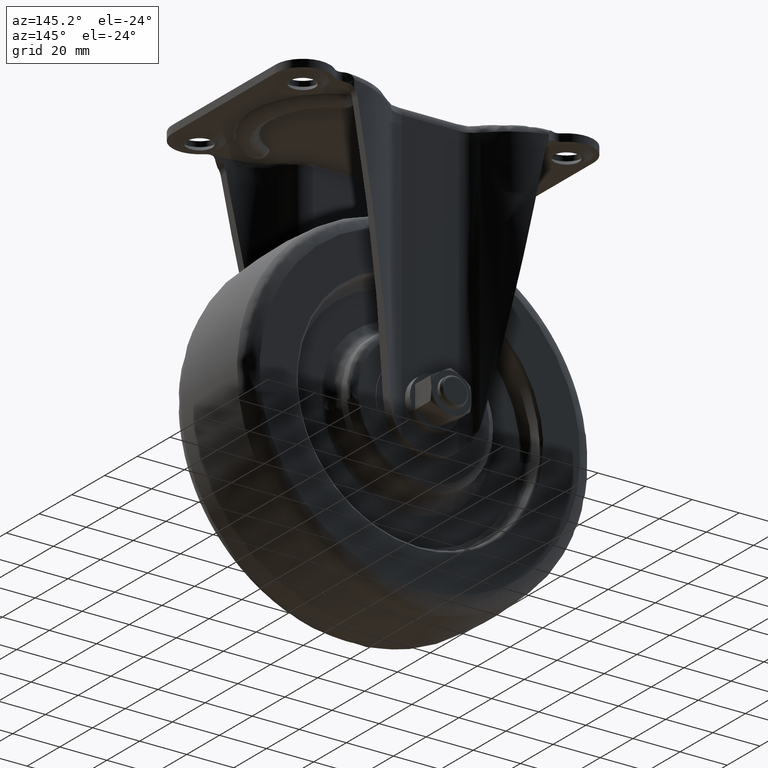
[diagram: clean part render]
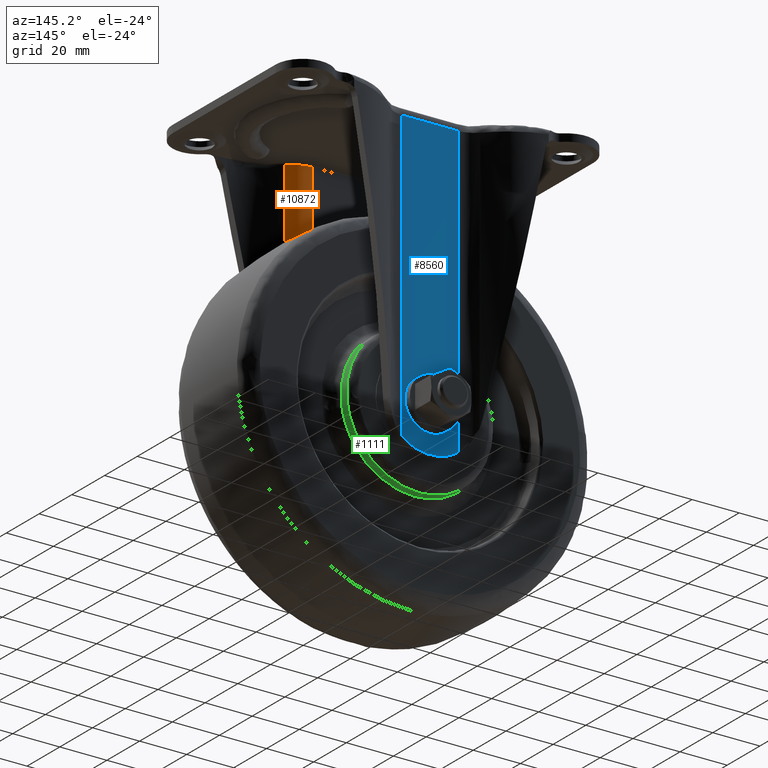
[diagram: same view with three faces highlighted in distinct colors, each labeled with its STEP entity id]
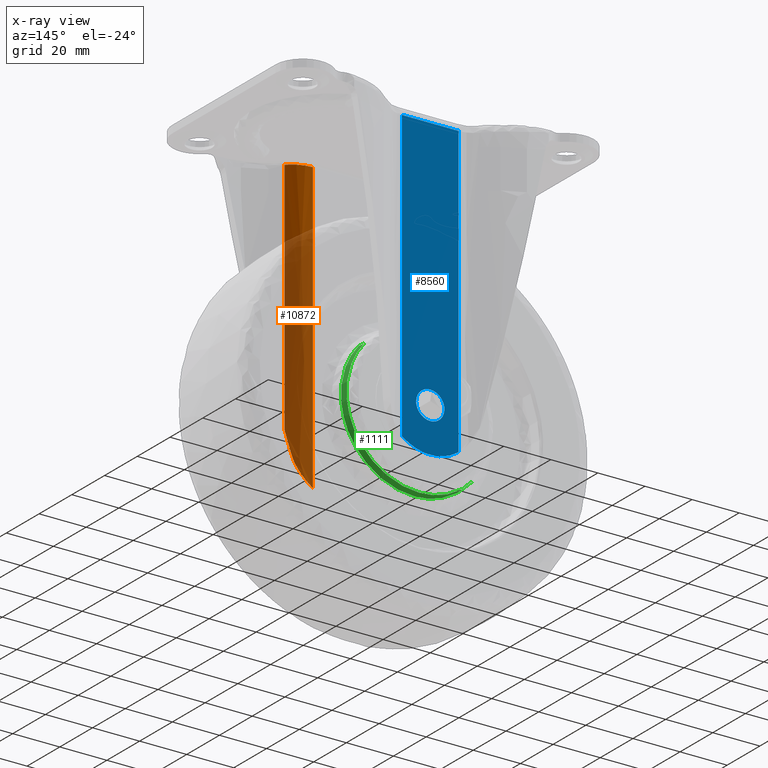
[diagram: x-ray of the same camera — body ghosted, the three highlighted faces saturated]
A machine part, auxiliary view with three faces highlighted in distinct colors.
The next image is the same camera in x-ray (body ghosted, the three faces saturated) — at least one of them is partly hidden behind the body in this view.
Their STEP definitions:

[orange] entity #10872 — the highlighted face is a freeform B-spline surface patch.
#8709=CARTESIAN_POINT('',(11.998857576891339,-25.650000999952251,-4.200000000000000));
#8710=VERTEX_POINT('',#8709);
#8716=CARTESIAN_POINT('',(11.998857576891339,-25.650000999952301,-126.852447957639200));
#8717=VERTEX_POINT('',#8716);
#8718=CARTESIAN_POINT('',(11.998857576891339,-25.650000999952301,-126.852447957639200));
#8719=CARTESIAN_POINT('',(11.998857576891339,-25.650000999952251,-4.200000000000000));
#8720=QUASI_UNIFORM_CURVE('',1,(#8718,#8719),.UNSPECIFIED.,.F.,.U.);
#8721=EDGE_CURVE('',#8717,#8710,#8720,.T.);
#10789=CARTESIAN_POINT('',(11.499224857822748,-25.659809661923450,-129.918759156580220));
#10790=CARTESIAN_POINT('',(11.499224857822748,-25.659809661923450,-1.057031021085507));
#10791=CARTESIAN_POINT('',(17.570729826120179,-25.421329026286106,-129.918759156580220));
#10792=CARTESIAN_POINT('',(17.570729826120179,-25.421329026286106,-1.057031021085507));
#10793=CARTESIAN_POINT('',(21.574478331822206,-29.991891737454523,-129.918759156580190));
#10794=CARTESIAN_POINT('',(21.574478331822206,-29.991891737454523,-1.057031021085507));
#10802=(BOUNDED_SURFACE()B_SPLINE_SURFACE(1,2,((#10789,#10791,#10793),(#10790,#10792,#10794)),.UNSPECIFIED.,.F.,.F.,.U.)B_SPLINE_SURFACE_WITH_KNOTS((2,2),(3,3),(0.0,128.861728135494700),(0.0,11.529360986531531),.UNSPECIFIED.)GEOMETRIC_REPRESENTATION_ITEM()RATIONAL_B_SPLINE_SURFACE(((0.998995563171738,0.900728673014789,0.997152628532019),(0.998995563171738,0.900728673014789,0.997152628532019)))REPRESENTATION_ITEM('')SURFACE());
#10803=ORIENTED_EDGE('',*,*,#8721,.T.);
#10804=CARTESIAN_POINT('',(21.237270609161399,-29.621883916653601,-4.200000000000000));
#10805=VERTEX_POINT('',#10804);
#10806=CARTESIAN_POINT('',(11.998857576891339,-25.650000999952258,-4.200000000000000));
#10807=CARTESIAN_POINT('',(17.471882386133679,-25.650001227994942,-4.200000000000000));
#10808=CARTESIAN_POINT('',(21.237270609161381,-29.621883916653619,-4.200000000000000));
#10816=(BOUNDED_CURVE()B_SPLINE_CURVE(2,(#10806,#10807,#10808),.UNSPECIFIED.,.F.,.U.)CURVE()GEOMETRIC_REPRESENTATION_ITEM()QUASI_UNIFORM_CURVE()RATIONAL_B_SPLINE_CURVE((1.0,0.918692106901592,1.0))REPRESENTATION_ITEM(''));
#10817=EDGE_CURVE('',#8710,#10805,#10816,.T.);
#10818=ORIENTED_EDGE('',*,*,#10817,.T.);
#10819=CARTESIAN_POINT('',(21.237270609161399,-29.621883916653601,-105.580785549944590));
#10820=VERTEX_POINT('',#10819);
#10821=CARTESIAN_POINT('',(21.237270609161399,-29.621883916653601,-105.580785549944590));
#10822=CARTESIAN_POINT('',(21.237270609161399,-29.621883916653601,-4.200000000000000));
#10823=QUASI_UNIFORM_CURVE('',1,(#10821,#10822),.UNSPECIFIED.,.F.,.U.);
#10824=EDGE_CURVE('',#10820,#10805,#10823,.T.);
#10825=ORIENTED_EDGE('',*,*,#10824,.F.);
#10826=CARTESIAN_POINT('',(19.451645345478301,-28.059688670849201,-114.840670278497600));
#10827=VERTEX_POINT('',#10826);
#10828=CARTESIAN_POINT('',(21.237270609161399,-29.621883916653651,-105.580785549944590));
#10829=CARTESIAN_POINT('',(20.417563976703150,-28.757224447192158,-109.831615263306570));
#10830=CARTESIAN_POINT('',(19.451645345478351,-28.059688670849290,-114.840670278497600));
#10838=(BOUNDED_CURVE()B_SPLINE_CURVE(2,(#10828,#10829,#10830),.UNSPECIFIED.,.F.,.U.)CURVE()GEOMETRIC_REPRESENTATION_ITEM()QUASI_UNIFORM_CURVE()RATIONAL_B_SPLINE_CURVE((1.0,0.995648654744825,1.0))REPRESENTATION_ITEM(''));
#10839=EDGE_CURVE('',#10820,#10827,#10838,.T.);
#10840=ORIENTED_EDGE('',*,*,#10839,.T.);
#10841=CARTESIAN_POINT('',(11.998857576891339,-25.650000999952251,-126.852447957639200));
#10842=CARTESIAN_POINT('',(12.491784743618791,-25.650001020490890,-126.477223351951910));
#10843=CARTESIAN_POINT('',(12.960543335972810,-25.678427681785720,-126.084001459736900));
#10844=CARTESIAN_POINT('',(13.853704785450971,-25.777844631243639,-125.262899648328700));
#10845=CARTESIAN_POINT('',(14.278088420114759,-25.848912484226439,-124.835014729362000));
#10846=CARTESIAN_POINT('',(15.084608425442870,-26.022767754976389,-123.944739330315300));
#10847=CARTESIAN_POINT('',(15.466737552279991,-26.125603163094269,-123.482350145830200));
#10848=CARTESIAN_POINT('',(16.008758168147601,-26.296562607630300,-122.762170337482800));
#10849=CARTESIAN_POINT('',(16.184225620741810,-26.356340372912030,-122.517668916492500));
#10850=CARTESIAN_POINT('',(16.439587991828461,-26.449325624469409,-122.144079370232110));
#10851=CARTESIAN_POINT('',(16.523365180682731,-26.480863306582549,-122.018453620210000));
#10852=CARTESIAN_POINT('',(16.687519090047228,-26.544583814933031,-121.766120198454300));
#10853=CARTESIAN_POINT('',(16.767999014066220,-26.576803648924351,-121.639263356340810));
#10854=CARTESIAN_POINT('',(17.162541157766341,-26.739305512634161,-121.001494918427700));
#10855=CARTESIAN_POINT('',(17.453107543883679,-26.873783356189868,-120.480164945794100));
#10856=CARTESIAN_POINT('',(17.986101445627341,-27.141905188875970,-119.413875826382200));
#10857=CARTESIAN_POINT('',(18.228526335202119,-27.275574527267398,-118.868921540408610));
#10858=CARTESIAN_POINT('',(18.556143442177589,-27.468037986439299,-118.032013354896510));
#10859=CARTESIAN_POINT('',(18.659331452021970,-27.530848733628289,-117.749789980678200));
#10860=CARTESIAN_POINT('',(18.804962488773938,-27.622068588958360,-117.321275906863210));
#10861=CARTESIAN_POINT('',(18.852032238428141,-27.652009430507459,-117.177403030600200));
#10862=CARTESIAN_POINT('',(18.942757622502281,-27.710509066597190,-116.888938635105010));
#10863=CARTESIAN_POINT('',(18.986423952174100,-27.739073205561990,-116.744331531965000));
#10864=CARTESIAN_POINT('',(19.196329545932841,-27.878103123264399,-116.019387143220300));
#10865=CARTESIAN_POINT('',(19.337360012677941,-27.977157797375568,-115.433330468415090));
#10866=CARTESIAN_POINT('',(19.451645345478319,-28.059688670849269,-114.840670278497600));
#10867=B_SPLINE_CURVE_WITH_KNOTS('',3,(#10841,#10842,#10843,#10844,#10845,#10846,#10847,#10848,#10849,#10850,#10851,#10852,#10853,#10854,#10855,#10856,#10857,#10858,#10859,#10860,#10861,#10862,#10863,#10864,#10865,#10866),.UNSPECIFIED.,.F.,.U.,(4,2,2,2,2,2,2,2,2,2,2,2,4),(0.0,0.124999999999998,0.249999999999996,0.374999999999994,0.437499999999992,0.468749999999992,0.499999999999991,0.624999999999994,0.749999999999997,0.812499999999998,0.843749999999998,0.874999999999997,1.0),.UNSPECIFIED.);
#10868=EDGE_CURVE('',#8717,#10827,#10867,.T.);
#10869=ORIENTED_EDGE('',*,*,#10868,.F.);
#10870=EDGE_LOOP('',(#10803,#10818,#10825,#10840,#10869));
#10871=FACE_OUTER_BOUND('',#10870,.T.);
#10872=ADVANCED_FACE('',(#10871),#10802,.T.);

[blue] entity #8560 — the highlighted face is a freeform B-spline surface patch.
#5133=CARTESIAN_POINT('',(0.052359213813815,28.850000502181640,-117.999771538377800));
#5134=VERTEX_POINT('',#5133);
#5135=CARTESIAN_POINT('',(5.999999999999995,28.850000750000000,-112.0));
#5136=VERTEX_POINT('',#5135);
#5137=CARTESIAN_POINT('',(0.052359213813813,28.850000502181633,-117.999771538377860));
#5138=CARTESIAN_POINT('',(5.999999999999995,28.850000750000007,-117.947867262753410));
#5139=CARTESIAN_POINT('',(5.999999999999995,28.850000750000000,-112.0));
#5147=(BOUNDED_CURVE()B_SPLINE_CURVE(2,(#5137,#5138,#5139),.UNSPECIFIED.,.F.,.U.)B_SPLINE_CURVE_WITH_KNOTS((3,3),(0.751539894359166,1.0),.UNSPECIFIED.)CURVE()GEOMETRIC_REPRESENTATION_ITEM()RATIONAL_B_SPLINE_CURVE((0.996414028044450,0.708910879648502,1.0))REPRESENTATION_ITEM(''));
#5148=EDGE_CURVE('',#5134,#5136,#5147,.T.);
#5189=CARTESIAN_POINT('',(-0.052359213813815,28.850000497818371,-106.000228461622200));
#5190=VERTEX_POINT('',#5189);
#5196=CARTESIAN_POINT('',(5.999999999999995,28.850000750000000,-112.0));
#5197=CARTESIAN_POINT('',(5.999999999999996,28.850000749999996,-106.0));
#5198=CARTESIAN_POINT('',(0.0,28.850000500000000,-106.0));
#5199=CARTESIAN_POINT('',(-0.026180105336019,28.850000498909161,-106.000000000000010));
#5200=CARTESIAN_POINT('',(-0.052359213813815,28.850000497818371,-106.000228461622200));
#5208=(BOUNDED_CURVE()B_SPLINE_CURVE(2,(#5196,#5197,#5198,#5199,#5200),.UNSPECIFIED.,.F.,.U.)B_SPLINE_CURVE_WITH_KNOTS((3,2,3),(0.0,0.250000000000000,0.251539894359166),.UNSPECIFIED.)CURVE()GEOMETRIC_REPRESENTATION_ITEM()RATIONAL_B_SPLINE_CURVE((1.0,0.707106781186548,1.0,0.998195901538045,0.996414028044450))REPRESENTATION_ITEM(''));
#5209=EDGE_CURVE('',#5136,#5190,#5208,.T.);
#5232=CARTESIAN_POINT('',(-5.999999999999995,28.850000250000001,-112.0));
#5233=VERTEX_POINT('',#5232);
#5234=CARTESIAN_POINT('',(-5.999999999999995,28.850000250000001,-112.0));
#5235=CARTESIAN_POINT('',(-5.999999999999996,28.850000250000008,-118.000000000000010));
#5236=CARTESIAN_POINT('',(0.0,28.850000500000000,-118.0));
#5237=CARTESIAN_POINT('',(0.026180105336018,28.850000501090832,-117.999999999999970));
#5238=CARTESIAN_POINT('',(0.052359213813813,28.850000502181633,-117.999771538377860));
#5246=(BOUNDED_CURVE()B_SPLINE_CURVE(2,(#5234,#5235,#5236,#5237,#5238),.UNSPECIFIED.,.F.,.U.)B_SPLINE_CURVE_WITH_KNOTS((3,2,3),(0.500000000000000,0.750000000000000,0.751539894359166),.UNSPECIFIED.)CURVE()GEOMETRIC_REPRESENTATION_ITEM()RATIONAL_B_SPLINE_CURVE((1.0,0.707106781186548,1.0,0.998195901538045,0.996414028044450))REPRESENTATION_ITEM(''));
#5247=EDGE_CURVE('',#5233,#5134,#5246,.T.);
#5249=CARTESIAN_POINT('',(-0.052359213813815,28.850000497818371,-106.000228461622200));
#5250=CARTESIAN_POINT('',(-5.999999999999994,28.850000250000001,-106.052132737246610));
#5251=CARTESIAN_POINT('',(-5.999999999999995,28.850000250000001,-112.0));
#5259=(BOUNDED_CURVE()B_SPLINE_CURVE(2,(#5249,#5250,#5251),.UNSPECIFIED.,.F.,.U.)B_SPLINE_CURVE_WITH_KNOTS((3,3),(0.251539894359166,0.500000000000000),.UNSPECIFIED.)CURVE()GEOMETRIC_REPRESENTATION_ITEM()RATIONAL_B_SPLINE_CURVE((0.996414028044450,0.708910879648503,1.0))REPRESENTATION_ITEM(''));
#5260=EDGE_CURVE('',#5190,#5233,#5259,.T.);
#6467=CARTESIAN_POINT('',(-11.998855098554341,28.850000000047650,-4.200000000000000));
#6468=VERTEX_POINT('',#6467);
#6519=CARTESIAN_POINT('',(11.998857443558160,28.850000999952350,-4.200000000000000));
#6520=VERTEX_POINT('',#6519);
#6534=CARTESIAN_POINT('',(-11.998855098554341,28.850000000047650,-4.200000000000000));
#6535=CARTESIAN_POINT('',(11.998857443558160,28.850000999952350,-4.200000000000000));
#6536=QUASI_UNIFORM_CURVE('',1,(#6534,#6535),.UNSPECIFIED.,.F.,.U.);
#6537=EDGE_CURVE('',#6468,#6520,#6536,.T.);
#8487=CARTESIAN_POINT('',(-11.998855098554341,28.850000000047650,-126.852449082974600));
#8488=VERTEX_POINT('',#8487);
#8489=CARTESIAN_POINT('',(-11.998855098554341,28.850000000047650,-126.852449082974600));
#8490=CARTESIAN_POINT('',(-11.998855098554341,28.850000000047650,-4.200000000000000));
#8491=QUASI_UNIFORM_CURVE('',1,(#8489,#8490),.UNSPECIFIED.,.F.,.U.);
#8492=EDGE_CURVE('',#8488,#6468,#8491,.T.);
#8525=CARTESIAN_POINT('',(-13.197540793520639,28.849999950102450,-137.228372893885900));
#8526=CARTESIAN_POINT('',(13.197543782193270,28.850001049897639,-137.228372893885900));
#8527=CARTESIAN_POINT('',(-13.197540793520639,28.849999950102450,2.128654267898445));
#8528=CARTESIAN_POINT('',(13.197543782193270,28.850001049897639,2.128654267898445));
#8529=B_SPLINE_SURFACE_WITH_KNOTS('',1,1,((#8525,#8527),(#8526,#8528)),.UNSPECIFIED.,.F.,.F.,.U.,(2,2),(2,2),(0.0,26.395084575713920),(0.0,139.357027161784290),.UNSPECIFIED.);
#8530=ORIENTED_EDGE('',*,*,#8492,.T.);
#8531=ORIENTED_EDGE('',*,*,#6537,.T.);
#8532=CARTESIAN_POINT('',(11.998857443558160,28.850000999952350,-126.852448059134600));
#8533=VERTEX_POINT('',#8532);
#8534=CARTESIAN_POINT('',(11.998857443558160,28.850000999952350,-126.852448059134600));
#8535=CARTESIAN_POINT('',(11.998857443558160,28.850000999952350,-4.200000000000000));
#8536=QUASI_UNIFORM_CURVE('',1,(#8534,#8535),.UNSPECIFIED.,.F.,.U.);
#8537=EDGE_CURVE('',#8533,#6520,#8536,.T.);
#8538=ORIENTED_EDGE('',*,*,#8537,.F.);
#8539=CARTESIAN_POINT('',(-11.998855098554319,28.850000000047689,-126.852449082974600));
#8540=CARTESIAN_POINT('',(0.000001562184140,28.850000500000050,-135.986182597764950));
#8541=CARTESIAN_POINT('',(11.998857443558190,28.850000999952371,-126.852448059134600));
#8549=(BOUNDED_CURVE()B_SPLINE_CURVE(2,(#8539,#8540,#8541),.UNSPECIFIED.,.F.,.U.)CURVE()GEOMETRIC_REPRESENTATION_ITEM()QUASI_UNIFORM_CURVE()RATIONAL_B_SPLINE_CURVE((1.0,0.795695433958386,1.0))REPRESENTATION_ITEM(''));
#8550=EDGE_CURVE('',#8488,#8533,#8549,.T.);
#8551=ORIENTED_EDGE('',*,*,#8550,.F.);
#8552=EDGE_LOOP('',(#8530,#8531,#8538,#8551));
#8553=FACE_OUTER_BOUND('',#8552,.T.);
#8554=ORIENTED_EDGE('',*,*,#5209,.T.);
#8555=ORIENTED_EDGE('',*,*,#5260,.T.);
#8556=ORIENTED_EDGE('',*,*,#5247,.T.);
#8557=ORIENTED_EDGE('',*,*,#5148,.T.);
#8558=EDGE_LOOP('',(#8554,#8555,#8556,#8557));
#8559=FACE_BOUND('',#8558,.T.);
#8560=ADVANCED_FACE('',(#8553,#8559),#8529,.F.);

[green] entity #1111 — the highlighted face is a freeform B-spline surface patch.
#875=CARTESIAN_POINT('',(30.931695067394759,19.059591383894610,-115.513284567577000));
#876=VERTEX_POINT('',#875);
#890=CARTESIAN_POINT('',(23.671877731607569,19.059591383949360,-91.782306440779735));
#891=VERTEX_POINT('',#890);
#892=CARTESIAN_POINT('',(30.931695067394752,19.059591383894613,-115.513284567576970));
#893=CARTESIAN_POINT('',(31.130578667847640,19.059591383897459,-113.762271586762980));
#894=CARTESIAN_POINT('',(31.130578667847399,19.059591383900649,-112.000000000000990));
#895=CARTESIAN_POINT('',(31.130578667845846,19.059591383921457,-100.515323195732650));
#896=CARTESIAN_POINT('',(23.671877731607569,19.059591383949364,-91.782306440779735));
#904=(BOUNDED_CURVE()B_SPLINE_CURVE(2,(#892,#893,#894,#895,#896),.UNSPECIFIED.,.F.,.U.)B_SPLINE_CURVE_WITH_KNOTS((3,2,3),(0.230444236556076,0.250000000000000,0.363143161349398),.UNSPECIFIED.)CURVE()GEOMETRIC_REPRESENTATION_ITEM()RATIONAL_B_SPLINE_CURVE((0.957762333072344,0.977088997994219,1.0,0.867444541142580,0.854871031639148))REPRESENTATION_ITEM(''));
#905=EDGE_CURVE('',#876,#891,#904,.T.);
#980=CARTESIAN_POINT('',(-23.671877731607580,19.059591383949371,-132.217693559220290));
#981=VERTEX_POINT('',#980);
#997=CARTESIAN_POINT('',(0.0,19.059591384007700,-143.130578667837990));
#998=VERTEX_POINT('',#997);
#999=CARTESIAN_POINT('',(-23.671877731607580,19.059591383949360,-132.217693559220210));
#1000=CARTESIAN_POINT('',(-14.351393337649048,19.059591383984369,-143.130578667837910));
#1001=CARTESIAN_POINT('',(0.0,19.059591384007700,-143.130578667837990));
#1009=(BOUNDED_CURVE()B_SPLINE_CURVE(2,(#999,#1000,#1001),.UNSPECIFIED.,.F.,.U.)B_SPLINE_CURVE_WITH_KNOTS((3,3),(0.863143161349398,1.0),.UNSPECIFIED.)CURVE()GEOMETRIC_REPRESENTATION_ITEM()RATIONAL_B_SPLINE_CURVE((0.854871031639149,0.839662240043968,1.0))REPRESENTATION_ITEM(''));
#1010=EDGE_CURVE('',#981,#998,#1009,.T.);
#1012=CARTESIAN_POINT('',(0.0,19.059591384007700,-143.130578667837990));
#1013=CARTESIAN_POINT('',(27.794866873872429,19.059591383951165,-143.130578667838510));
#1014=CARTESIAN_POINT('',(30.931695067394752,19.059591383894613,-115.513284567576970));
#1022=(BOUNDED_CURVE()B_SPLINE_CURVE(2,(#1012,#1013,#1014),.UNSPECIFIED.,.F.,.U.)B_SPLINE_CURVE_WITH_KNOTS((3,3),(0.0,0.230444236556076),.UNSPECIFIED.)CURVE()GEOMETRIC_REPRESENTATION_ITEM()RATIONAL_B_SPLINE_CURVE((1.0,0.730017783192329,0.957762333072344))REPRESENTATION_ITEM(''));
#1023=EDGE_CURVE('',#998,#876,#1022,.T.);
#1029=CARTESIAN_POINT('',(-23.462096665760129,22.179513032014199,-132.038523602702500));
#1030=CARTESIAN_POINT('',(-3.423573063057610,22.179513032014192,-155.500620268462710));
#1031=CARTESIAN_POINT('',(20.038523602702519,22.179513032014199,-135.462096665760100));
#1032=CARTESIAN_POINT('',(43.500620268462654,22.179513032014192,-115.423573063057600));
#1033=CARTESIAN_POINT('',(23.462096665760129,22.179513032014199,-91.961476397297474));
#1034=CARTESIAN_POINT('',(-23.677122258258930,18.981593342691621,-132.222172808136090));
#1035=CARTESIAN_POINT('',(-3.454949450122847,18.981593342691617,-155.899295066395010));
#1036=CARTESIAN_POINT('',(20.222172808136090,18.981593342691621,-135.677122258258890));
#1037=CARTESIAN_POINT('',(43.899295066395020,18.981593342691617,-115.454949450122830));
#1038=CARTESIAN_POINT('',(23.677122258258930,18.981593342691621,-91.777827191863906));
#1046=(BOUNDED_SURFACE()B_SPLINE_SURFACE(2,1,((#1029,#1034),(#1030,#1035),(#1031,#1036),(#1032,#1037),(#1033,#1038)),.UNSPECIFIED.,.F.,.F.,.U.)B_SPLINE_SURFACE_WITH_KNOTS((3,2,3),(2,2),(0.0,51.590258893341527,103.180517786683100),(0.0,3.210397697395581),.UNSPECIFIED.)GEOMETRIC_REPRESENTATION_ITEM()RATIONAL_B_SPLINE_SURFACE(((1.0,1.0),(0.707106781186548,0.707106781186548),(1.0,1.0),(0.707106781186548,0.707106781186548),(1.0,1.0)))REPRESENTATION_ITEM('')SURFACE());
#1047=ORIENTED_EDGE('',*,*,#1010,.F.);
#1048=CARTESIAN_POINT('',(-23.467213277160852,22.103417381564810,-132.042893601675590));
#1049=VERTEX_POINT('',#1048);
#1050=CARTESIAN_POINT('',(-23.467213277160852,22.103417381564810,-132.042893601675590));
#1051=CARTESIAN_POINT('',(-23.671877731607580,19.059591383949371,-132.217693559220290));
#1052=QUASI_UNIFORM_CURVE('',1,(#1050,#1051),.UNSPECIFIED.,.F.,.U.);
#1053=EDGE_CURVE('',#1049,#981,#1052,.T.);
#1054=ORIENTED_EDGE('',*,*,#1053,.F.);
#1055=CARTESIAN_POINT('',(0.0,22.103417381031850,-142.861427104499000));
#1056=VERTEX_POINT('',#1055);
#1057=CARTESIAN_POINT('',(-23.467213277160848,22.103417381564810,-132.042893601675640));
#1058=CARTESIAN_POINT('',(-14.227312767411146,22.103417381245777,-142.861427104498570));
#1059=CARTESIAN_POINT('',(0.0,22.103417381031850,-142.861427104499000));
#1067=(BOUNDED_CURVE()B_SPLINE_CURVE(2,(#1057,#1058,#1059),.UNSPECIFIED.,.F.,.U.)B_SPLINE_CURVE_WITH_KNOTS((3,3),(0.863143161349210,1.0),.UNSPECIFIED.)CURVE()GEOMETRIC_REPRESENTATION_ITEM()RATIONAL_B_SPLINE_CURVE((0.854871031639190,0.839662240043747,1.0))REPRESENTATION_ITEM(''));
#1068=EDGE_CURVE('',#1049,#1056,#1067,.T.);
#1069=ORIENTED_EDGE('',*,*,#1068,.T.);
#1070=CARTESIAN_POINT('',(30.705608283012079,22.103417382060051,-115.097305747082900));
#1071=VERTEX_POINT('',#1070);
#1072=CARTESIAN_POINT('',(0.0,22.103417381031850,-142.861427104499000));
#1073=CARTESIAN_POINT('',(27.905013295640025,22.103417381545952,-142.861427104494400));
#1074=CARTESIAN_POINT('',(30.705608283012079,22.103417382060051,-115.097305747082840));
#1082=(BOUNDED_CURVE()B_SPLINE_CURVE(2,(#1072,#1073,#1074),.UNSPECIFIED.,.F.,.U.)B_SPLINE_CURVE_WITH_KNOTS((3,3),(0.0,0.232576558917152),.UNSPECIFIED.)CURVE()GEOMETRIC_REPRESENTATION_ITEM()RATIONAL_B_SPLINE_CURVE((1.0,0.727519612152795,0.962019632128902))REPRESENTATION_ITEM(''));
#1083=EDGE_CURVE('',#1056,#1071,#1082,.T.);
#1084=ORIENTED_EDGE('',*,*,#1083,.T.);
#1085=CARTESIAN_POINT('',(23.467213277160852,22.103417381564810,-91.957106398324328));
#1086=VERTEX_POINT('',#1085);
#1087=CARTESIAN_POINT('',(30.705608283012079,22.103417382060051,-115.097305747082840));
#1088=CARTESIAN_POINT('',(30.861427104410254,22.103417382036625,-113.552572329200430));
#1089=CARTESIAN_POINT('',(30.861427104412201,22.103417382010718,-111.999999999991900));
#1090=CARTESIAN_POINT('',(30.861427104426440,22.103417381820723,-100.614618449759870));
#1091=CARTESIAN_POINT('',(23.467213277160848,22.103417381564810,-91.957106398324328));
#1099=(BOUNDED_CURVE()B_SPLINE_CURVE(2,(#1087,#1088,#1089,#1090,#1091),.UNSPECIFIED.,.F.,.U.)B_SPLINE_CURVE_WITH_KNOTS((3,2,3),(0.232576558917152,0.250000000000000,0.363143161349210),.UNSPECIFIED.)CURVE()GEOMETRIC_REPRESENTATION_ITEM()RATIONAL_B_SPLINE_CURVE((0.962019632128902,0.979587169033753,1.0,0.867444541142800,0.854871031639190))REPRESENTATION_ITEM(''));
#1100=EDGE_CURVE('',#1071,#1086,#1099,.T.);
#1101=ORIENTED_EDGE('',*,*,#1100,.T.);
#1102=CARTESIAN_POINT('',(23.467213277160852,22.103417381564810,-91.957106398324328));
#1103=CARTESIAN_POINT('',(23.671877731607569,19.059591383949360,-91.782306440779735));
#1104=QUASI_UNIFORM_CURVE('',1,(#1102,#1103),.UNSPECIFIED.,.F.,.U.);
#1105=EDGE_CURVE('',#1086,#891,#1104,.T.);
#1106=ORIENTED_EDGE('',*,*,#1105,.T.);
#1107=ORIENTED_EDGE('',*,*,#905,.F.);
#1108=ORIENTED_EDGE('',*,*,#1023,.F.);
#1109=EDGE_LOOP('',(#1047,#1054,#1069,#1084,#1101,#1106,#1107,#1108));
#1110=FACE_OUTER_BOUND('',#1109,.T.);
#1111=ADVANCED_FACE('',(#1110),#1046,.T.);